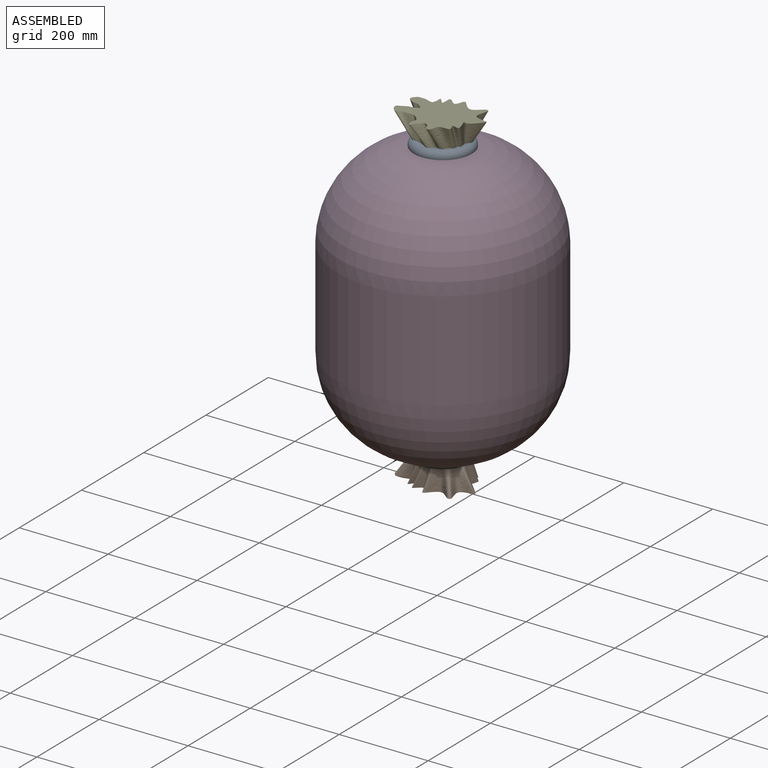
[diagram: assembled view]
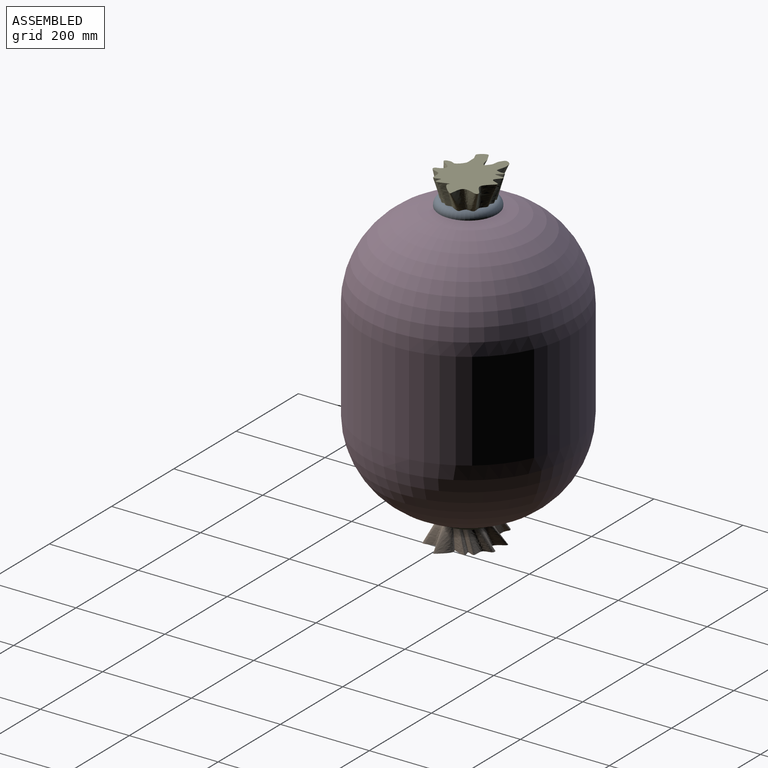
[diagram: assembled view, second angle]
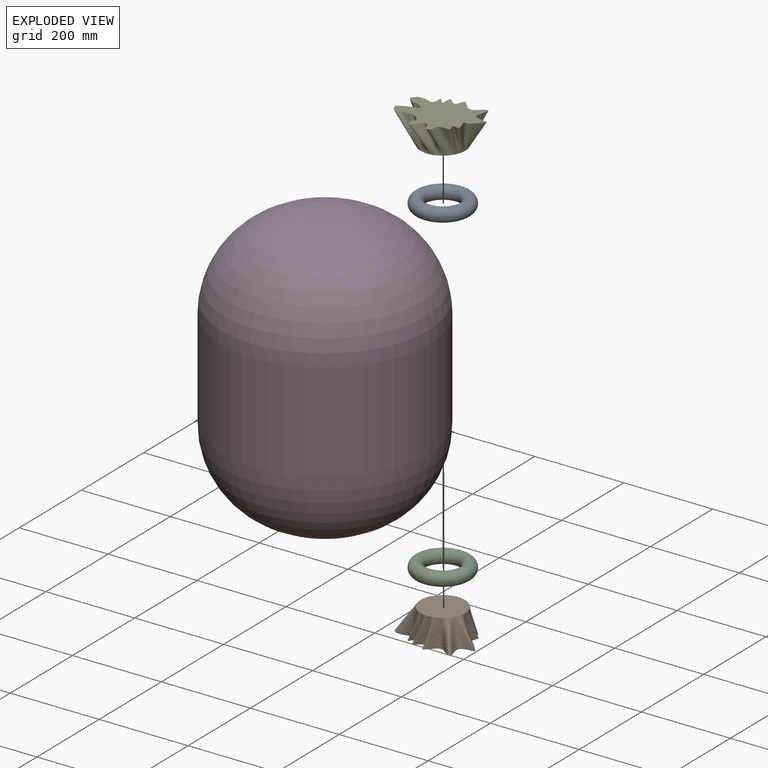
[diagram: exploded view]
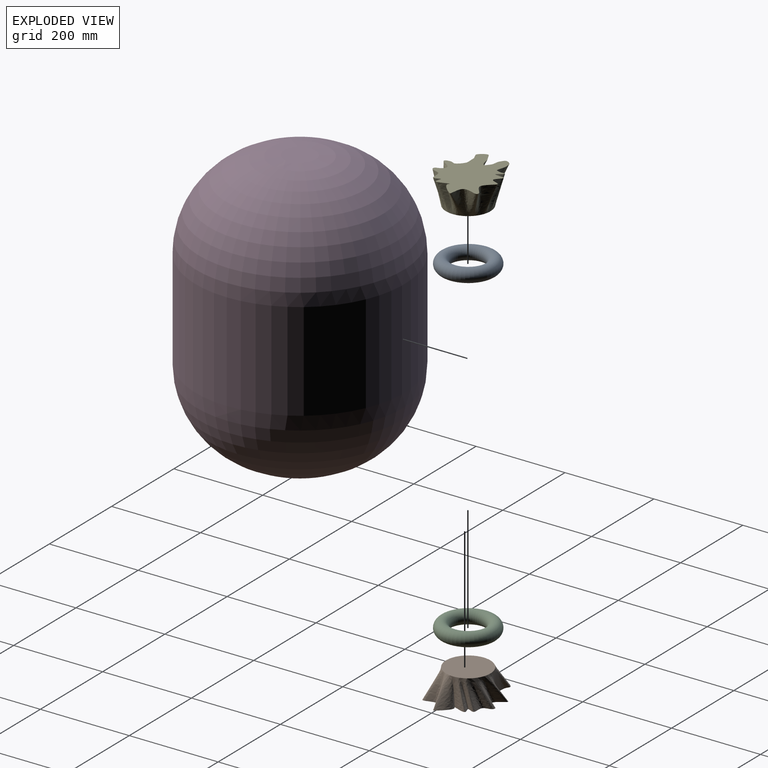
[diagram: exploded view, second angle]
ASSEMBLY  parts=5 mates=4
PART A: 1 faces, bbox 140.7x140.7x30 mm
  f0: torus R=50mm, axis (0,0,1), area 29608.8mm2
PART B: 3 faces, bbox 179x140.4x61.1 mm
  f0: plane 100x100mm, normal (0,0,-1), area 7853.4mm2, adj f2
  f1: plane 179x140.4mm, normal (0,0,1), area 14302.1mm2, adj f2
  f2: bspline ~174.64x137.34mm, area 30146.9mm2, adj f0,f1
PART C: same geometry as A
PART D: 5 faces, bbox 470x470x621 mm
  f0: cylinder r=235mm len=470mm, axis (0,0,-1), area 326317.2mm2, adj f3,f4
  f1: plane 70x70mm, normal (0,0,1), area 3848.5mm2, adj f4
  f2: plane 70x70mm, normal (0,0,-1), area 3848.5mm2, adj f3
  f3: torus R=35mm, axis (0,0,1), area 320414.6mm2, adj f0,f2
  f4: torus R=35mm, axis (0,0,1), area 320414.6mm2, adj f0,f1
PART E: same geometry as B
PLACE A t=(-270.29,33.38,391.55)mm
PLACE B rot(axis=(1,0,0),180deg) t=(-270.29,33.38,-229.45)mm
PLACE C t=(-270.29,33.38,-229.45)mm
PLACE D t=(-270.29,33.38,72.55)mm
PLACE E t=(-270.29,33.38,391.55)mm
MATE fastened E.f0 <-> D.f0  axis (0,0,-1) through (-270.29,33.38,391.55)mm
MATE revolute A.f0 <-> D.f0  axis (0,0,1) through (-270.29,33.38,391.55)mm
MATE slider C.f0 <-> D.f0  axis (0,0,1) through (-270.29,33.38,-229.45)mm
MATE fastened B.f0 <-> D.f0  axis (0,0,1) through (-270.29,33.38,-229.45)mm
